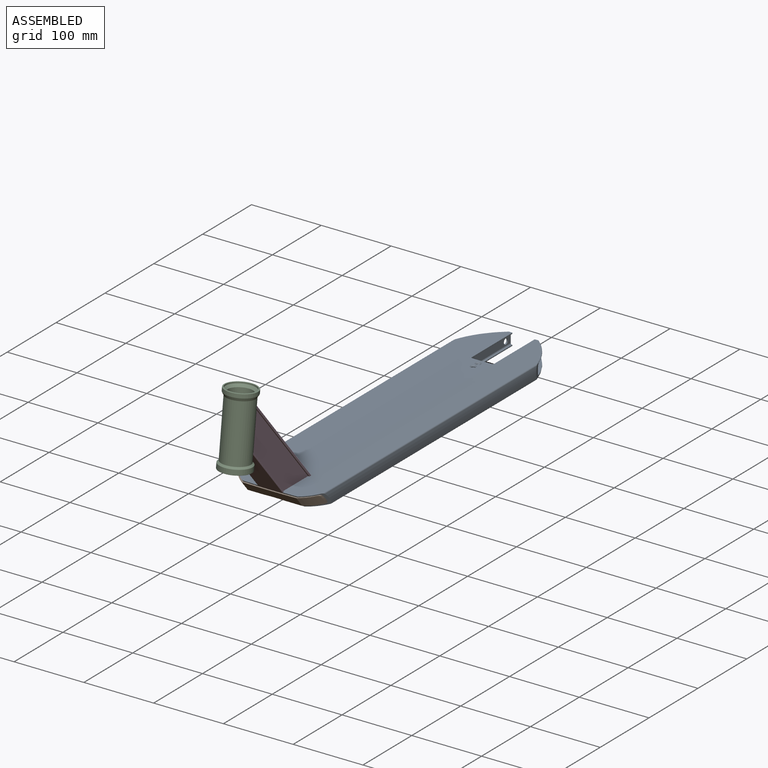
[diagram: assembled view]
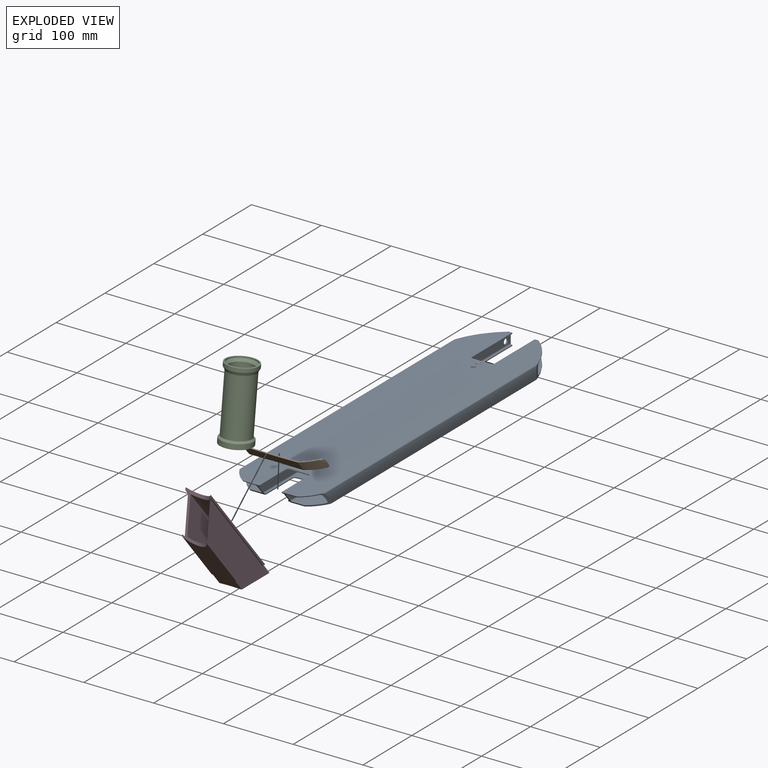
[diagram: exploded view]
GUIDED TOUR — MATED ASSEMBLY (Onshape document 5899f9d827753d0fe4516618, AutoMate assembly 5899f9d827753d0fe4516618_567c46d3849fc88c2c447848_10b330c58dbc436a115efa28_default)

This assembly has 4 components, labeled P0..P3 below (a component is one placed occurrence of a part; the same part can appear more than once), held together by 3 mates. A mate is a constraint between two components; its type names the relative motion it leaves free:
  CYLINDRICAL — leaves both rotation about and translation along the listed axis free,
  FASTENED — locks the two components together rigidly (no relative motion).
Axis/direction vectors are unit vectors and 'through' points are millimeter coordinates, both in the assembly's world frame.

MATES
  1. CYLINDRICAL "Cylindrical 1": P2 <-> P3, axis (0.000, -0.122, -0.993) through (0.00, -589.21, 81.15) mm
  2. FASTENED "Fastened 2": P0 <-> P1, direction (0.000, 0.000, 1.000) through (-39.00, -505.32, 2.50) mm
  3. FASTENED "Fastened 1": P3 <-> P0, direction (0.000, -0.766, -0.643) through (16.00, -518.60, 18.33) mm

ASSEMBLY ORDER
  1. P3 — the base component [order verified]
  2. P2 [order verified]
  3. P0 [order verified]
  4. P1 [order verified]
Order-tag legend:
  [order verified] — this step's position reverses a verified removal order: the component was checked to insert without passing through the ones already placed.

Of the 4 components, 1 carries the full construction recipe — the FeatureScript program that regenerates the part's solid from scratch; the rest are supplied as boundary geometry only.
Each toured component is shown spotlighted twice — in the assembled view, then in the exploded view, where a leader line traces a displaced component back to its assembled socket (saturated green if recipe-attached, orange if geometry-only; every other component desaturated gray) — followed by its recipe or geometry summary and the mates that hold it.
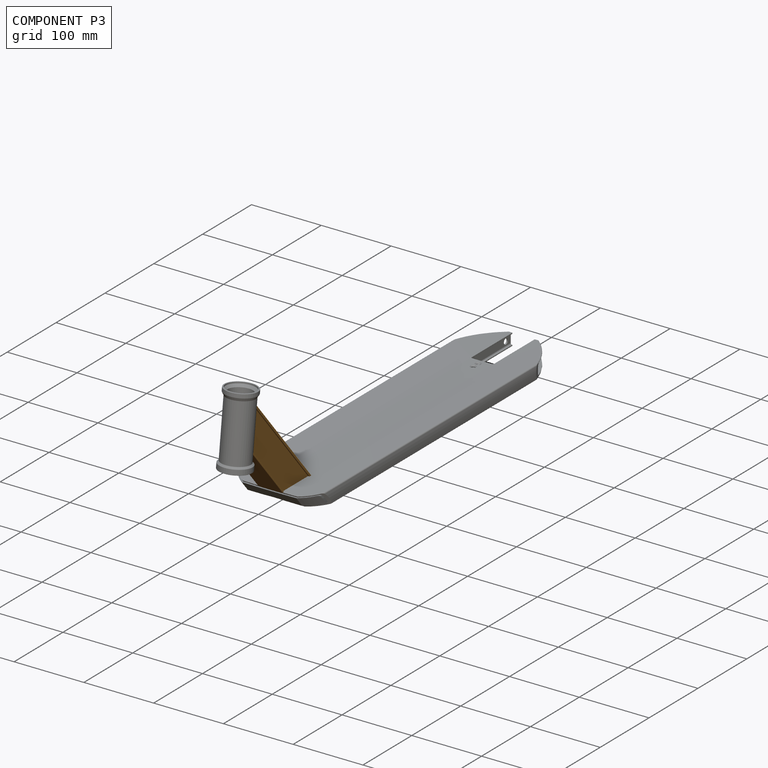
[diagram: component P3 — assembled]
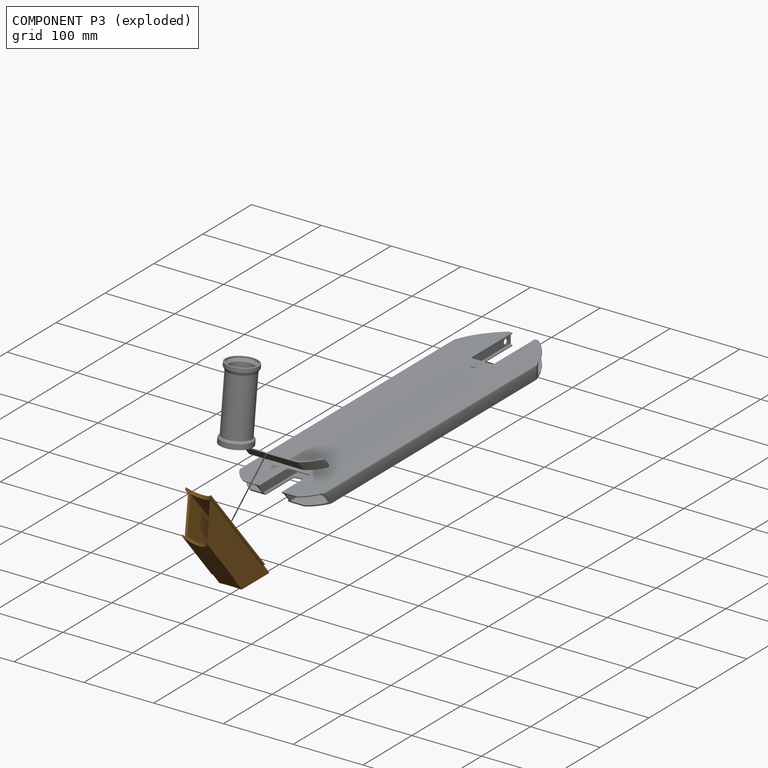
[diagram: component P3 — exploded]
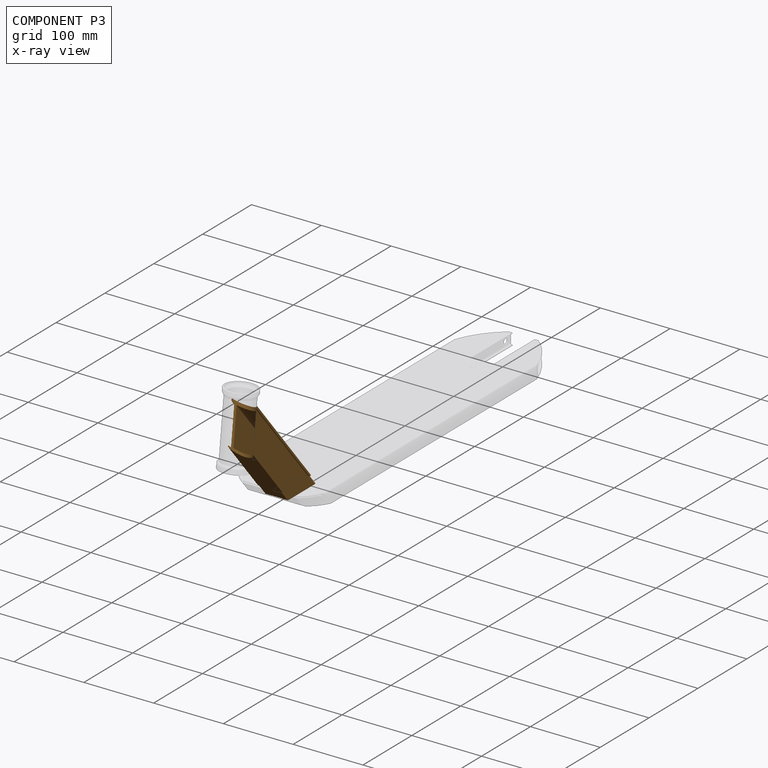
[diagram: component P3 — x-ray view]
COMPONENT P3 — geometry summary (no construction recipe available for this part):
  bounding box: 194.5 x 60.0 x 36.1 mm
  B-rep topology: 1 solid, 35 faces, 194 edges
  volume: 56308 mm^3 (13% of its bounding box)
  symmetry: mirror-symmetric across its x mid-plane
Held by: CYLINDRICAL mate "Cylindrical 1" to P2; FASTENED mate "Fastened 1" to P0.
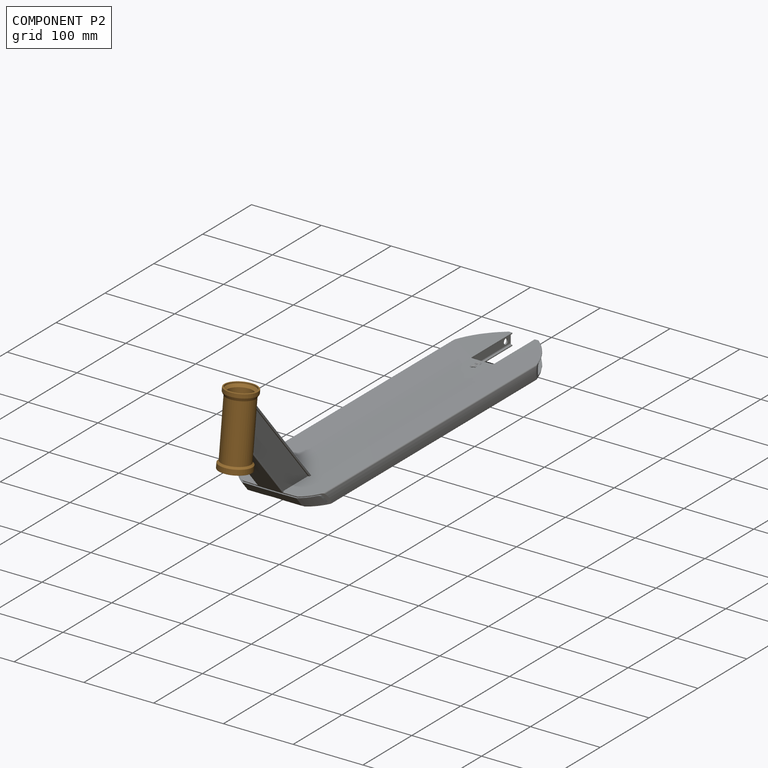
[diagram: component P2 — assembled]
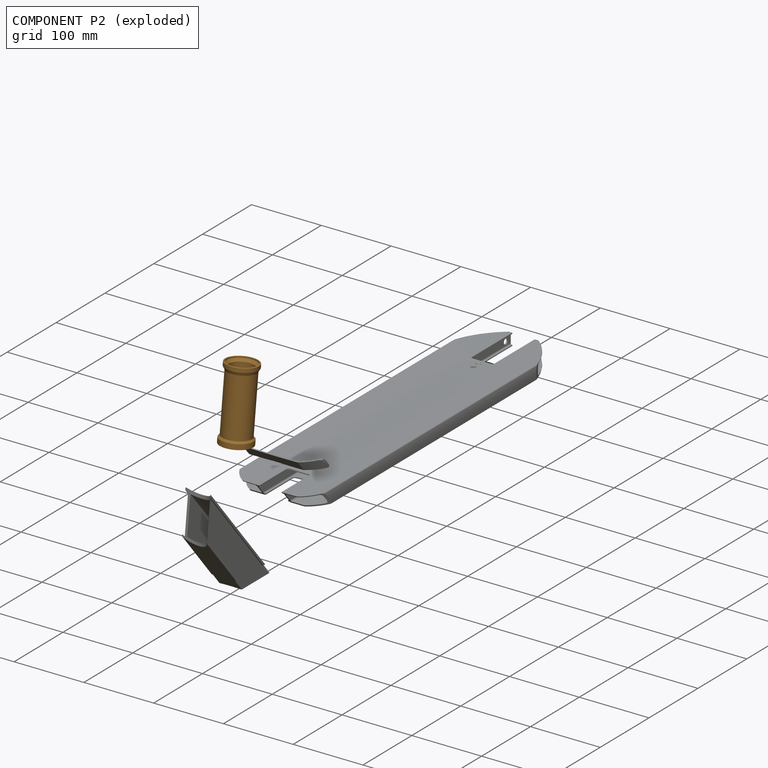
[diagram: component P2 — exploded]
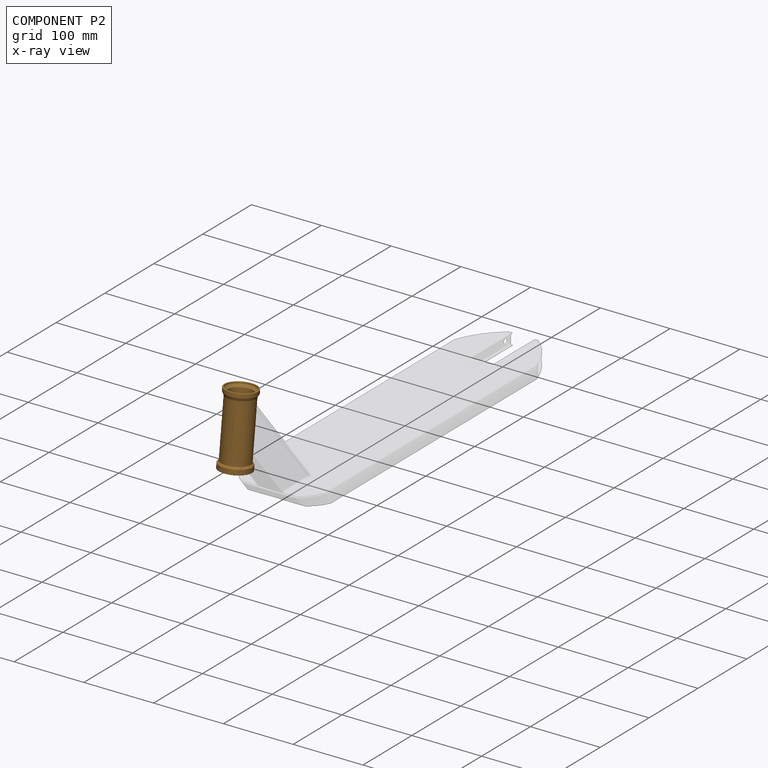
[diagram: component P2 — x-ray view]
COMPONENT P2 — geometry summary (no construction recipe available for this part):
  bounding box: 102.0 x 48.7 x 48.7 mm
  B-rep topology: 1 solid, 18 faces, 78 edges
  volume: 37195 mm^3 (15% of its bounding box)
  symmetry: revolution-symmetric about the z axis through its bounding-box center; mirror-symmetric across its x mid-plane, y mid-plane
Held by: CYLINDRICAL mate "Cylindrical 1" to P3.
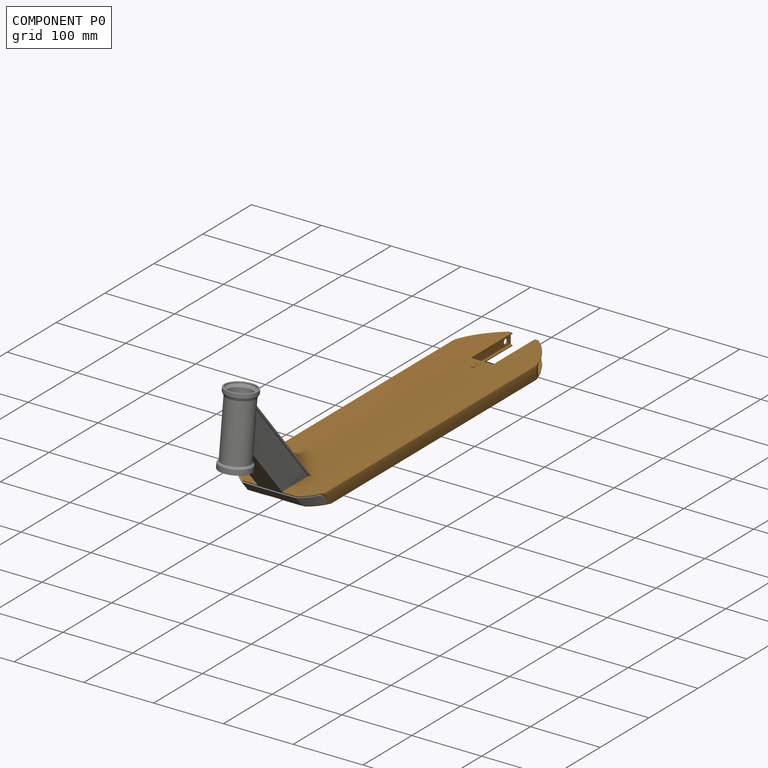
[diagram: component P0 — assembled]
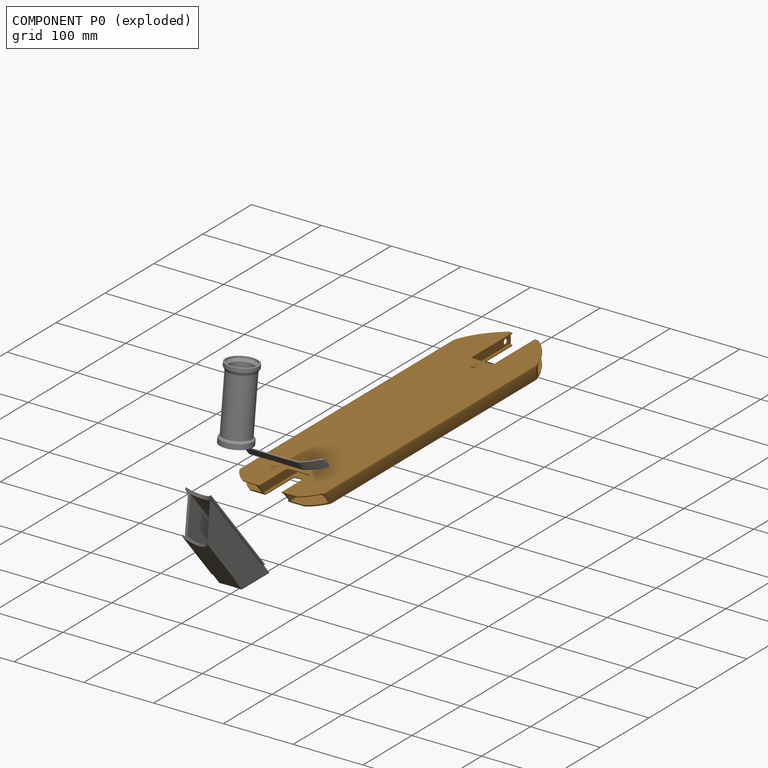
[diagram: component P0 — exploded]
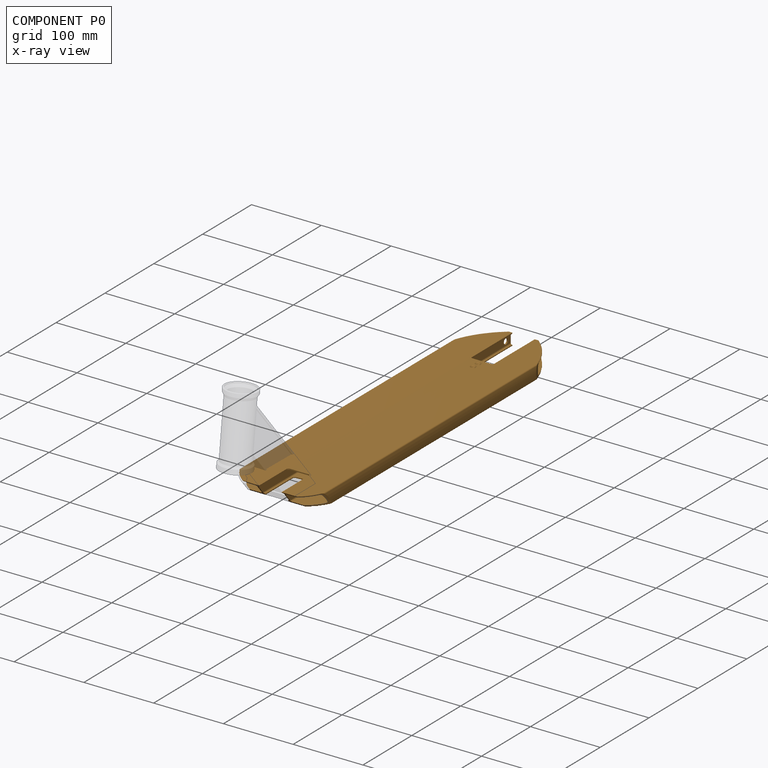
[diagram: component P0 — x-ray view]
COMPONENT P0 — geometry summary (no construction recipe available for this part):
  bounding box: 529.4 x 141.6 x 45.6 mm
  B-rep topology: 1 solid, 131 faces, 717 edges
  volume: 263203 mm^3 (8% of its bounding box)
  symmetry: mirror-symmetric across its x mid-plane
Held by: FASTENED mate "Fastened 2" to P1; FASTENED mate "Fastened 1" to P3.
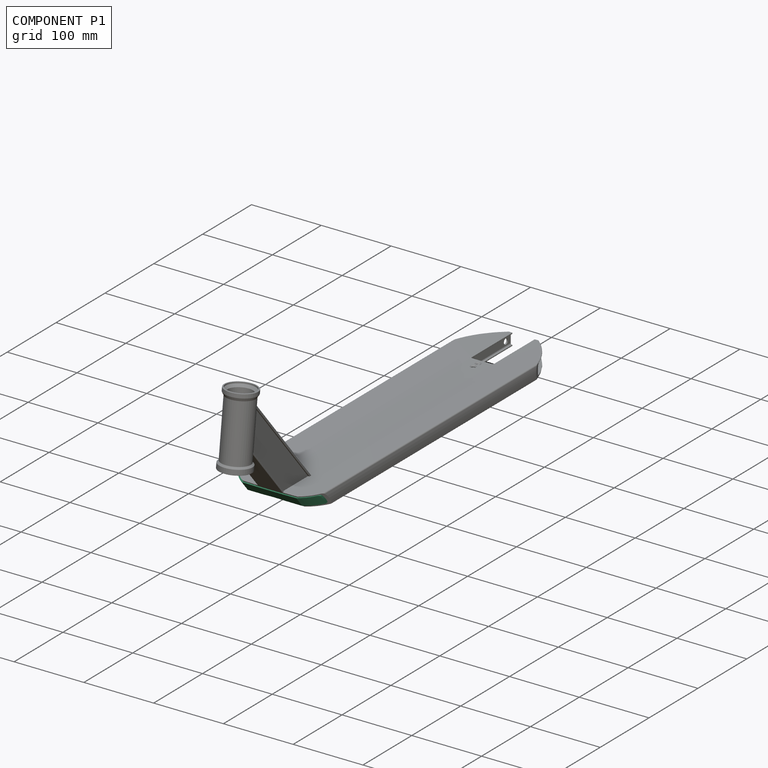
[diagram: component P1 — assembled]
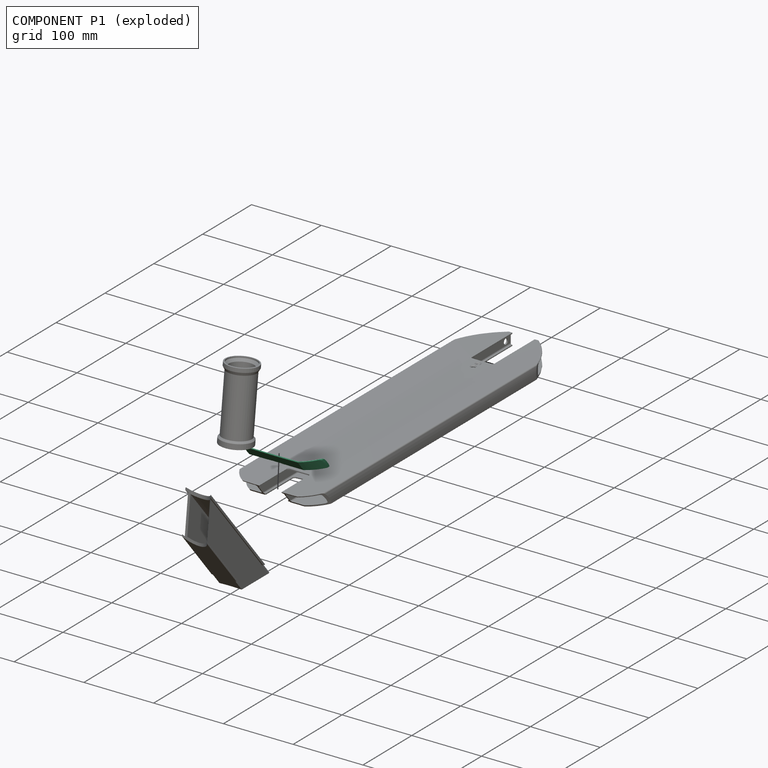
[diagram: component P1 — exploded]
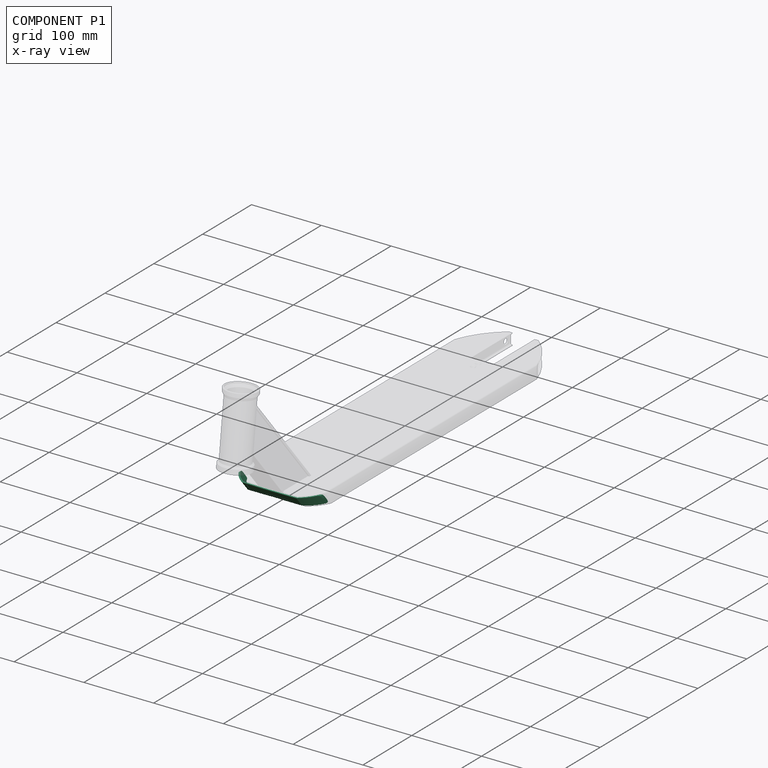
[diagram: component P1 — x-ray view]
COMPONENT P1 — recipe-attached (CADFS 00496490, mesh-verified: the recipe's output STEP matches this component's geometry to below the mesh-comparison resolution (tessellation chordal tolerance ~0.186 mm)).
Held by: FASTENED mate "Fastened 2" to P0.
Construction recipe (FeatureScript — the CAD program that rebuilds this solid; sketch coordinates are in the units given by the * unit suffixes, e.g. mm):

FeatureScript 1511;
import(path : "onshape/std/geometry.fs", version : "1511.0");
import(path : "onshape/std/common.fs", version : "1511.0");
const mm = millimeter;
const VERTEX = EntityType.VERTEX;
const EDGE = EntityType.EDGE;
const FACE = EntityType.FACE;
const BODY = EntityType.BODY;
function v(x, y){return vector(x, y);}
function OD(order){return orderDisambiguation(order);}
function OSD(set){return originalSetDisambiguation(set);}
function TD(topology){return topologyDisambiguation(topology);}
function TDD(query){return trueDependencyDisambiguation(query);}
function sQuery(a, b, c) {return sketchEntityQuery(a, b, c);}

annotation { "Feature Type Name" : "Feature", "Feature Type Description" : "" }
export const myFeature = defineFeature(function(context is Context, id is Id, definition is map)
    precondition{}
    {
        {
            var Q0;
            Q0=qCreatedBy(makeId("Front.planeOp"),FACE);
            var sketch = newSketch(context, id + "F0", { "sketchPlane" : qUnion([Q0])});
            skArc(sketch, "E0", {"start": v(-58, 15.5) * mm, "mid": v(-58.5, 7.75) * mm, "end": v(-58, 0) * mm});
            skArc(sketch, "E1", {"start": v(58, 0.06) * mm, "mid": v(58.5, 7.8) * mm, "end": v(58, 15.56) * mm});
            skArc(sketch, "E2", {"start": v(58, 0.06) * mm, "mid": v(0, 1.71) * mm, "end": v(-58, 0) * mm});
            skLineSegment(sketch, "E3", {"start": v(-58, 15.5) * mm, "end": v(-16, 15.5) * mm});
            skLineSegment(sketch, "E4", {"start": v(58, 15.56) * mm, "end": v(16, 15.56) * mm});
            skArc(sketch, "E5", {"start": v(-16, 15.5) * mm, "mid": v(0, 14.89) * mm, "end": v(16, 15.56) * mm});
            skSolve(sketch);
        }
        {
            var Q0;
            Q0=makeQuery(id+"F0.imprint","IMPRINT",FACE,{"disambiguationData":[TD([[makeQuery(id+"F0.imprint","IMPRINT",EDGE,{"derivedFrom":sQuery(id+"F0.wireOp",EDGE,"E0")}),1.0]])]});
            var Q1;
            Q1=sQuery(id+"F0.wireOp",EDGE,"E0");
            var Q2;
            Q2=sQuery(id+"F0.wireOp",EDGE,"170cc053-ae22-420d-94f3-23036fa35352");
            var Q3;
            Q3=sQuery(id+"F0.wireOp",EDGE,"0ddac671-3e88-4b45-b8af-5c0815418419");
            var Q4;
            Q4=sQuery(id+"F0.wireOp",EDGE,"3fd53242-a7d9-4184-a239-63e3792486e1");
            var Q5;
            Q5=sQuery(id+"F0.wireOp",EDGE,"E1");
            var Q6;
            Q6=sQuery(id+"F0.wireOp",EDGE,"0a818849-f8e2-4715-b427-94ae307ff970");
            extrude(context, id + "F1", {"entities" : qUnion([Q0]), "surfaceEntities" : qUnion([Q1, Q2, Q3, Q4, Q5, Q6]), "depth" : 40 * mm, "hasSecondDirection" : true, "secondDirectionOppositeDirection" : true, "secondDirectionDepth" : 11 * mm});
        }
        {
            var Q0;
            Q0=makeQuery(id+"F1.opExtrude","CAP_FACE",FACE,{"disambiguationData":[OSD([sQuery(id+"F0.wireOp",EDGE,"E0"),sQuery(id+"F0.wireOp",EDGE,"E1"),sQuery(id+"F0.wireOp",EDGE,"E2"),sQuery(id+"F0.wireOp",EDGE,"E3"),sQuery(id+"F0.wireOp",EDGE,"E4"),sQuery(id+"F0.wireOp",EDGE,"E5")])],"isStart":false});
            var Q1;
            Q1=makeQuery(id+"F1.opExtrude","CAP_EDGE",EDGE,{"disambiguationData":[OSD([sQuery(id+"F0.wireOp",EDGE,"E4")])],"isStart":false});
            cPlane(context, id + "F2", {"entities" : qUnion([Q0, Q1]), "cplaneType" : CPlaneType.LINE_ANGLE, "offset" : 25 * mm, "angle" : 130 * degree, "width" : 150 * mm, "height" : 150 * mm});
        }
        {
            var Q0;
            Q0=qCreatedBy(id+"F2.planeOp",FACE);
            var sketch = newSketch(context, id + "F3", { "sketchPlane" : qUnion([Q0])});
            skLineSegment(sketch, "E6", {"start": v(61, 22.98) * mm, "end": v(61, 1.98) * mm});
            skLineSegment(sketch, "E7", {"start": v(-61, 22.98) * mm, "end": v(-61, 1.98) * mm});
            skArc(sketch, "E8", {"start": v(61, 1.98) * mm, "mid": v(51.64, 14.2) * mm, "end": v(39, 22.98) * mm});
            skArc(sketch, "E9", {"start": v(-39, 22.98) * mm, "mid": v(-51.64, 14.2) * mm, "end": v(-61, 1.98) * mm});
            skLineSegment(sketch, "E10", {"start": v(0, 20.98) * mm, "end": v(38.5, 21) * mm});
            skLineSegment(sketch, "E11", {"start": v(0, 20.98) * mm, "end": v(-38.53, 20.98) * mm});
            skArc(sketch, "E12", {"start": v(-38.53, 20.98) * mm, "mid": v(-52.62, 10.12) * mm, "end": v(-62, -4.98) * mm});
            skArc(sketch, "E13", {"start": v(61.99, -4.94) * mm, "mid": v(52.59, 10.15) * mm, "end": v(38.5, 21) * mm});
            skLineSegment(sketch, "E14", {"start": v(59.42, -21.7) * mm, "end": v(60.21, -21.7) * mm});
            skPoint(sketch, "E15.start.orphan", {"position": v(38.5, 0) * mm});
            skPoint(sketch, "E16.start.orphan", {"position": v(-38.53, 0) * mm});
            skLineSegment(sketch, "E17", {"start": v(61, 22.98) * mm, "end": v(61, 52.98) * mm});
            skLineSegment(sketch, "E18", {"start": v(-61, 22.98) * mm, "end": v(-61, 52.98) * mm});
            skLineSegment(sketch, "E19", {"start": v(61, 52.98) * mm, "end": v(-61, 52.98) * mm});
            skLineSegment(sketch, "E20", {"start": v(39, 22.98) * mm, "end": v(-39, 22.98) * mm});
            skLineSegment(sketch, "E21", {"start": v(0, -28.22) * mm, "end": v(61, -28.22) * mm});
            skLineSegment(sketch, "E22", {"start": v(0, -28.22) * mm, "end": v(-61, -28.22) * mm});
            skLineSegment(sketch, "E23", {"start": v(-61, -28.22) * mm, "end": v(-61, -10.63) * mm});
            skLineSegment(sketch, "E24", {"start": v(61, -28.22) * mm, "end": v(61, -12.47) * mm});
            skLineSegment(sketch, "E25", {"start": v(61, -12.47) * mm, "end": v(61, -2.63) * mm});
            skLineSegment(sketch, "E26", {"start": v(-61, -10.63) * mm, "end": v(-61, -2.63) * mm});
            skSolve(sketch);
        }
        {
            var Q0;
            Q0=makeQuery(id+"F3.imprint","IMPRINT",FACE,{"disambiguationData":[TD([[makeQuery(id+"F3.imprint","IMPRINT",EDGE,{"derivedFrom":sQuery(id+"F3.wireOp",EDGE,"E10")}),-1.0]])]});
            var Q1;
            Q1=makeQuery(id+"F3.imprint","IMPRINT",FACE,{"disambiguationData":[TD([[makeQuery(id+"F3.imprint","IMPRINT",EDGE,{"derivedFrom":sQuery(id+"F3.wireOp",EDGE,"E6")}),-1.0]])]});
            extrude(context, id + "F4", {"entities" : qUnion([Q0, Q1]), "operationType" : NewBodyOperationType.REMOVE, "oppositeDirection" : true, "depth" : 35 * mm, "hasSecondDirection" : true, "secondDirectionOppositeDirection" : false, "secondDirectionDepth" : 27.9 * mm});
        }
        {
            var Q0;
            Q0=makeQuery(id+"F1.opExtrude","SWEPT_EDGE",EDGE,{"disambiguationData":[OSD([sQuery(id+"F0.wireOp",EDGE,"E1"),sQuery(id+"F0.wireOp",EDGE,"E2")])]});
            var Q1;
            Q1=makeQuery(id+"F1.opExtrude","SWEPT_EDGE",EDGE,{"disambiguationData":[OSD([sQuery(id+"F0.wireOp",EDGE,"E0"),sQuery(id+"F0.wireOp",EDGE,"E2")])]});
            fillet(context, id + "F5", {"entities" : qUnion([Q0, Q1]), "radius" : 2 * mm, "tangentPropagation" : true, "allowEdgeOverflow" : false});
        }
    });
PROVENANCE & LICENSES
Assembly (occurrences, transforms, mates, per-part STEP geometry): AutoMate dataset, Zenodo record 7776208, CC0.
Construction recipes: CADFS (HuggingFace VladPyatov/CADFS, CC-BY-4.0, layered over the ABC dataset), FeatureScript reconstruction programs keyed by ABC model id.
Join: ABC meta listings map ABC model id -> Onshape documentId; within a shared document, parts are matched by geometric signature (bounding-box dims + volume at 0.1% relative tolerance, exact B-rep face/solid counts).
Verification: 1 of this assembly's 4 components carries a recipe attachment, and every attachment is mesh-verified: the CADFS STEP and the AutoMate member STEP were compared as meshes in their shared local frame (symmetric sampled-point-to-mesh distance); worst across the 1 attachment: below the mesh-comparison resolution (tessellation chordal tolerance ~0.186 mm) on a 124 mm part.
Renders: orthographic iso camera (az 35 / el 25); the floor grid conveys scale (grid pitch printed in each image; no ruler). In the exploded view each component is displaced by its stored offset vector: the offsets alone carry the explosion direction (mate normal/axis signs are not orientation cues and do not encode it), and separation distances are assigned per mate-chain, not proportionally to assembly-order depth.
